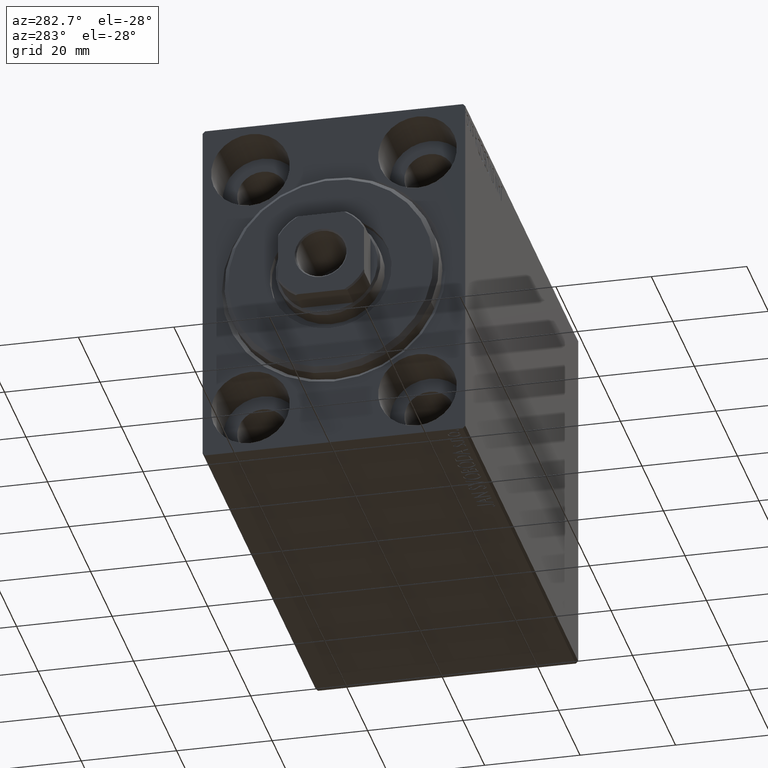
[diagram: clean part render]
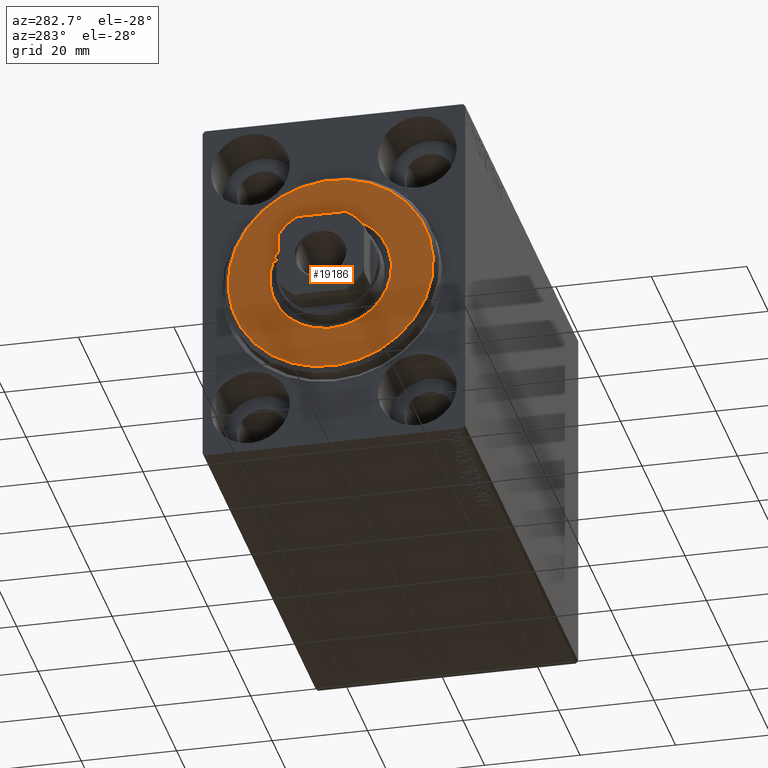
[diagram: same view with one face highlighted and labeled with its STEP entity id]
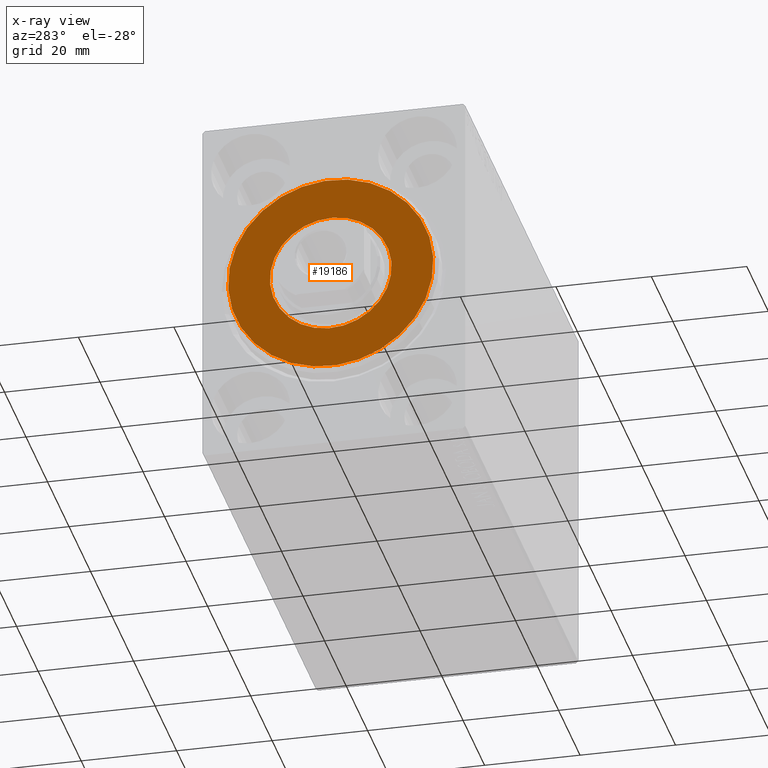
[diagram: x-ray of the same camera — body ghosted, the highlighted face saturated]
A machine part, auxiliary view. The second image highlights one B-rep face of the part: STEP entity #19186.
The next image is the same camera in x-ray: the body ghosted, the highlighted face saturated — about 0% of this face is hidden behind the body in this view.
In plain terms, the highlighted planar face has unit normal (-1, 0, 0).
Its self-contained STEP definition (entity closure, byte-faithful):
#1534 = ORIENTED_EDGE ( 'NONE', *, *, #33877, .T. ) ;
#1859 = EDGE_LOOP ( 'NONE', ( #10426, #11291 ) ) ;
#2325 = CARTESIAN_POINT ( 'NONE',  ( 3.000000000000000000, 0.000000000000000000, 0.000000000000000000 ) ) ;
#2392 = DIRECTION ( 'NONE',  ( 0.000000000000000000, 0.000000000000000000, -1.000000000000000000 ) ) ;
#3155 = DIRECTION ( 'NONE',  ( 0.000000000000000000, 0.000000000000000000, -1.000000000000000000 ) ) ;
#3232 = CARTESIAN_POINT ( 'NONE',  ( 3.000000000000000000, 2.694222958124177598E-15, -21.50000000000000355 ) ) ;
#3785 = CIRCLE ( 'NONE', #13632, 12.75000000000000000 ) ;
#6890 = CARTESIAN_POINT ( 'NONE',  ( 3.000000000000000000, 0.000000000000000000, 0.000000000000000000 ) ) ;
#10426 = ORIENTED_EDGE ( 'NONE', *, *, #34881, .T. ) ;
#11291 = ORIENTED_EDGE ( 'NONE', *, *, #27068, .T. ) ;
#13632 = AXIS2_PLACEMENT_3D ( 'NONE', #6890, #27147, #20974 ) ;
#14825 = CARTESIAN_POINT ( 'NONE',  ( 3.000000000000000000, 1.561424668912874914E-15, -12.75000000000000000 ) ) ;
#16290 = AXIS2_PLACEMENT_3D ( 'NONE', #42266, #32578, #2392 ) ;
#16587 = CIRCLE ( 'NONE', #38378, 21.50000000000000355 ) ;
#16600 = CARTESIAN_POINT ( 'NONE',  ( 3.000000000000000000, 0.000000000000000000, 0.000000000000000000 ) ) ;
#16633 = DIRECTION ( 'NONE',  ( 1.000000000000000000, -0.000000000000000000, 0.000000000000000000 ) ) ;
#17158 = VERTEX_POINT ( 'NONE', #26782 ) ;
#18784 = CARTESIAN_POINT ( 'NONE',  ( 3.000000000000000000, 0.000000000000000000, 21.50000000000000355 ) ) ;
#19186 = ADVANCED_FACE ( 'NONE', ( #40154, #22778 ), #33337, .T. ) ;
#19257 = DIRECTION ( 'NONE',  ( 1.000000000000000000, -0.000000000000000000, 0.000000000000000000 ) ) ;
#19468 = EDGE_LOOP ( 'NONE', ( #21989, #1534 ) ) ;
#19738 = DIRECTION ( 'NONE',  ( 1.000000000000000000, -0.000000000000000000, 0.000000000000000000 ) ) ;
#20974 = DIRECTION ( 'NONE',  ( 0.000000000000000000, 0.000000000000000000, -1.000000000000000000 ) ) ;
#21989 = ORIENTED_EDGE ( 'NONE', *, *, #43440, .T. ) ;
#22778 = FACE_BOUND ( 'NONE', #1859, .T. ) ;
#22816 = DIRECTION ( 'NONE',  ( 0.000000000000000000, 0.000000000000000000, -1.000000000000000000 ) ) ;
#25593 = CIRCLE ( 'NONE', #39650, 21.50000000000000355 ) ;
#26782 = CARTESIAN_POINT ( 'NONE',  ( 3.000000000000000000, 0.000000000000000000, 12.75000000000000000 ) ) ;
#27068 = EDGE_CURVE ( 'NONE', #38109, #17158, #35273, .T. ) ;
#27147 = DIRECTION ( 'NONE',  ( -1.000000000000000000, 0.000000000000000000, -0.000000000000000000 ) ) ;
#31558 = AXIS2_PLACEMENT_3D ( 'NONE', #16600, #19257, #3155 ) ;
#32578 = DIRECTION ( 'NONE',  ( -1.000000000000000000, 0.000000000000000000, -0.000000000000000000 ) ) ;
#32833 = VERTEX_POINT ( 'NONE', #3232 ) ;
#33337 = PLANE ( 'NONE',  #31558 ) ;
#33877 = EDGE_CURVE ( 'NONE', #32833, #37003, #25593, .T. ) ;
#34881 = EDGE_CURVE ( 'NONE', #17158, #38109, #3785, .T. ) ;
#35273 = CIRCLE ( 'NONE', #16290, 12.75000000000000000 ) ;
#36284 = DIRECTION ( 'NONE',  ( 0.000000000000000000, 0.000000000000000000, -1.000000000000000000 ) ) ;
#37003 = VERTEX_POINT ( 'NONE', #18784 ) ;
#38109 = VERTEX_POINT ( 'NONE', #14825 ) ;
#38378 = AXIS2_PLACEMENT_3D ( 'NONE', #43317, #19738, #36284 ) ;
#39650 = AXIS2_PLACEMENT_3D ( 'NONE', #2325, #16633, #22816 ) ;
#40154 = FACE_OUTER_BOUND ( 'NONE', #19468, .T. ) ;
#42266 = CARTESIAN_POINT ( 'NONE',  ( 3.000000000000000000, 0.000000000000000000, 0.000000000000000000 ) ) ;
#43317 = CARTESIAN_POINT ( 'NONE',  ( 3.000000000000000000, 0.000000000000000000, 0.000000000000000000 ) ) ;
#43440 = EDGE_CURVE ( 'NONE', #37003, #32833, #16587, .T. ) ;